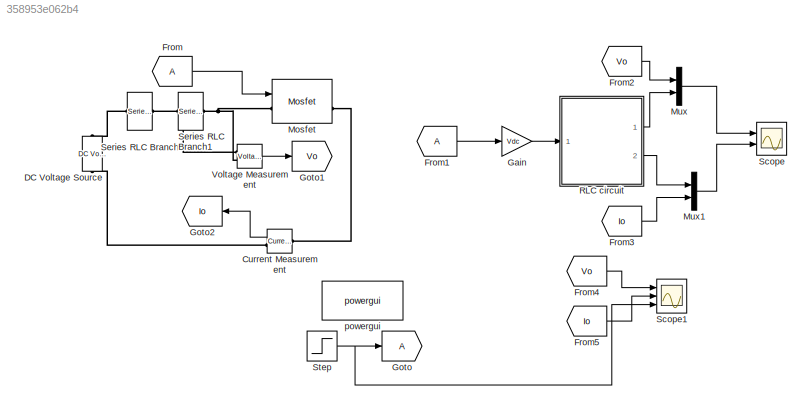
MODEL slx_358953e062b4
KIND model
CONFIG AbsTol = auto
CONFIG EnableMultiTasking = off
CONFIG FixedStep = auto
CONFIG MaxStep = auto
CONFIG MinStep = auto
CONFIG RelTol = 1e-3
CONFIG SampleTimeConstraint = Unconstrained
CONFIG SolverName = VariableStepAuto
CONFIG StartTime = 0.0
CONFIG StopTime = 4
WORKSPACE source: mxarray member
WORKSPACE C = 1e-06
WORKSPACE L = 0.001
WORKSPACE R = 1
WORKSPACE Vdc = 30
BLOCK [Reference] Current Measurement  REF=spsCurrentMeasurementLib/Current Measurement
  Ports = [0, 1, 0, 0, 0, 1, 1]
  SourceBlock = spsCurrentMeasurementLib/Current Measurement
  SourceProductBaseCode = PS
  SourceType = Current Measurement
  UserDataPersistent = on
BLOCK [Reference] DC Voltage Source  REF=spsDCVoltageSourceLib/DC Voltage Source
  Ports = [0, 0, 0, 0, 0, 1, 1]
  SourceBlock = spsDCVoltageSourceLib/DC Voltage Source
  SourceProductBaseCode = PS
  SourceType = DC Voltage Source
BLOCK [From] From
BLOCK [From] From1
BLOCK [From] From2
  GotoTag = Vo
BLOCK [From] From3
  GotoTag = Io
BLOCK [From] From4
  GotoTag = Vo
BLOCK [From] From5
  GotoTag = Io
BLOCK [Gain] Gain
  Gain = Vdc
BLOCK [Goto] Goto
BLOCK [Goto] Goto1
  GotoTag = Vo
BLOCK [Goto] Goto2
  GotoTag = Io
BLOCK [Reference] Mosfet  REF=spsMosfetLib/Mosfet
  Ports = [1, 1, 0, 0, 0, 1, 1]
  SourceBlock = spsMosfetLib/Mosfet
  SourceProductBaseCode = PS
  SourceType = Mosfet
BLOCK [Mux] Mux
  DisplayOption = bar
  Inputs = 2
  Ports = [2, 1]
BLOCK [Mux] Mux1
  DisplayOption = bar
  Inputs = 2
  Ports = [2, 1]
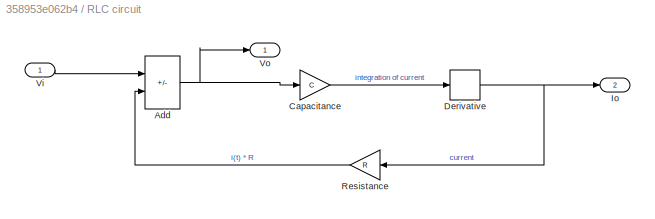
BLOCK [SubSystem] RLC circuit
  Ports = [1, 2]
  RequestExecContextInheritance = off
BLOCK [Sum] RLC circuit/Add
  IconShape = rectangular
  Inputs = +-
  Ports = [2, 1]
BLOCK [Gain] RLC circuit/Capacitance
  Gain = C
BLOCK [Derivative] RLC circuit/Derivative
BLOCK [Outport] RLC circuit/Io
  Port = 2
BLOCK [Gain] RLC circuit/Resistance
  Gain = R
BLOCK [Inport] RLC circuit/Vi
BLOCK [Outport] RLC circuit/Vo
BLOCK [Scope] Scope
  Floating = off
  NumInputPorts = 2
  Ports = [2]
  ScopeSpecificationString = Simulink.scopes.TimeScopeBlockCfg('CurrentConfiguration', extmgr.ConfigurationSet(extmgr.Configuration('Core','General UI',true),extmgr.Configuration('Core','Source UI',true),extmgr.Configuration('Sources','WiredSimulink',true),extmgr.Configuration('Visuals','Time Domain',true,'SerializedDisplays',{struct('MinYLimReal','-3.75','MaxYLimReal','33.75','YLabelReal','','MinYLimMag','0.00000','MaxYLimMa...<+2019ch>
BLOCK [Scope] Scope1
  Floating = off
  NumInputPorts = 3
  Ports = [3]
  ScopeSpecificationString = Simulink.scopes.TimeScopeBlockCfg('CurrentConfiguration', extmgr.ConfigurationSet(extmgr.Configuration('Core','General UI',true),extmgr.Configuration('Core','Source UI',true),extmgr.Configuration('Sources','WiredSimulink',true,'DataLoggingVariableName','ScopeData1'),extmgr.Configuration('Visuals','Time Domain',true,'SerializedDisplays',{struct('MinYLimReal','-3.75','MaxYLimReal','33.75','YLabelRea...<+2792ch>
BLOCK [Reference] Series RLC Branch  REF=spsSeriesRLCBranchLib/Series RLC Branch
  Ports = [0, 0, 0, 0, 0, 1, 1]
  SourceBlock = spsSeriesRLCBranchLib/Series RLC Branch
  SourceProductBaseCode = PS
  SourceType = Series RLC Branch
BLOCK [Reference] Series RLC Branch1  REF=spsSeriesRLCBranchLib/Series RLC Branch
  Ports = [0, 0, 0, 0, 0, 1, 1]
  SourceBlock = spsSeriesRLCBranchLib/Series RLC Branch
  SourceProductBaseCode = PS
  SourceType = Series RLC Branch
BLOCK [Step] Step
  SampleTime = 0
BLOCK [Reference] Voltage Measurement  REF=spsVoltageMeasurementLib/Voltage Measurement
  Ports = [0, 1, 0, 0, 0, 2]
  SourceBlock = spsVoltageMeasurementLib/Voltage Measurement
  SourceProductBaseCode = PS
  SourceType = Voltage Measurement
  UserDataPersistent = on
BLOCK [Reference] powergui  REF=spspowerguiLib/powergui
  Ports = []
  Priority = 1
  SourceBlock = spspowerguiLib/powergui
  SourceProductBaseCode = PS
  SourceType = PSB option menu block
LINE Current Measurement:1 -> Goto2:1
LINE From1:1 -> Gain:1
LINE From2:1 -> Mux:1
LINE From3:1 -> Mux1:2
LINE From4:1 -> Scope1:1
LINE From5:1 -> Scope1:2
LINE From:1 -> Mosfet:1
LINE Gain:1 -> RLC circuit:1
LINE Mux1:1 -> Scope:2
LINE Mux:1 -> Scope:1
NET RLC circuit/Add:1 -> RLC circuit/Capacitance:1, RLC circuit/Vo:1
LINE RLC circuit/Capacitance:1 -> RLC circuit/Derivative:1
NET RLC circuit/Derivative:1 -> RLC circuit/Io:1, RLC circuit/Resistance:1
LINE RLC circuit/Resistance:1 -> RLC circuit/Add:2
LINE RLC circuit/Vi:1 -> RLC circuit/Add:1
LINE RLC circuit:1 -> Mux:2
LINE RLC circuit:2 -> Mux1:1
NET Step:1 -> Goto:1, Scope1:3
LINE Voltage Measurement:1 -> Goto1:1
PLINE Current Measurement:LConn1 -- Mosfet:RConn1
PLINE Current Measurement:RConn1 -- DC Voltage Source:LConn1
PLINE DC Voltage Source:RConn1 -- Series RLC Branch:LConn1
PNET net1: Mosfet:LConn1 -- Series RLC Branch1:RConn1 -- Voltage Measurement:LConn2
PNET net2: Series RLC Branch1:LConn1 -- Series RLC Branch:RConn1 -- Voltage Measurement:LConn1
note: NET lines group one-source signal fan-out (src -> all destinations, sorted); 1:1 wires keep LINE; PNET lines group multi-terminal physical nets as a canonical sorted terminal list (undirected conserving connections); 2-terminal nets keep the pairwise PLINE form
